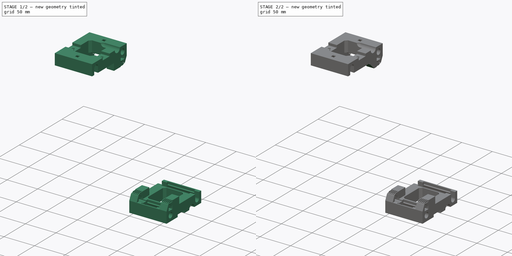
[diagram: build sequence overview — one tinted view per stage of 2, left to right]
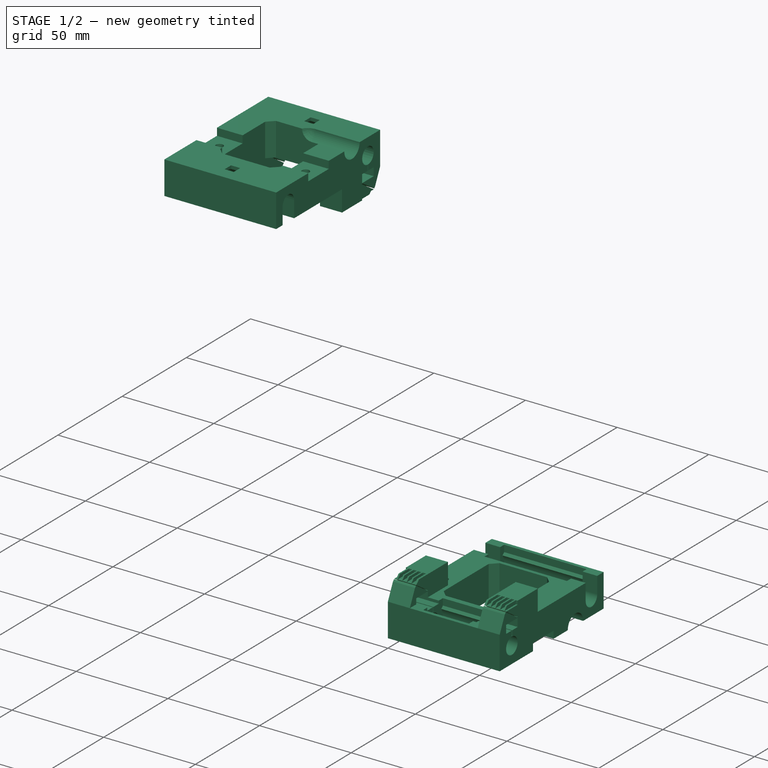
[diagram: stage 1 of 2 — iso view after this stage's code; geometry added in this stage tinted green]
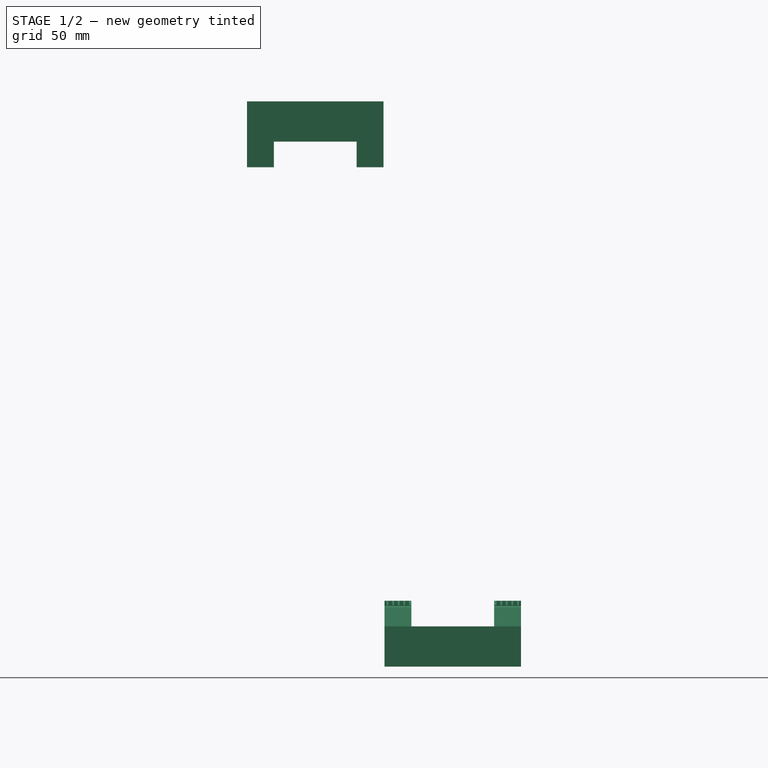
[diagram: stage 1 of 2 — front view after this stage's code; geometry added in this stage tinted green]
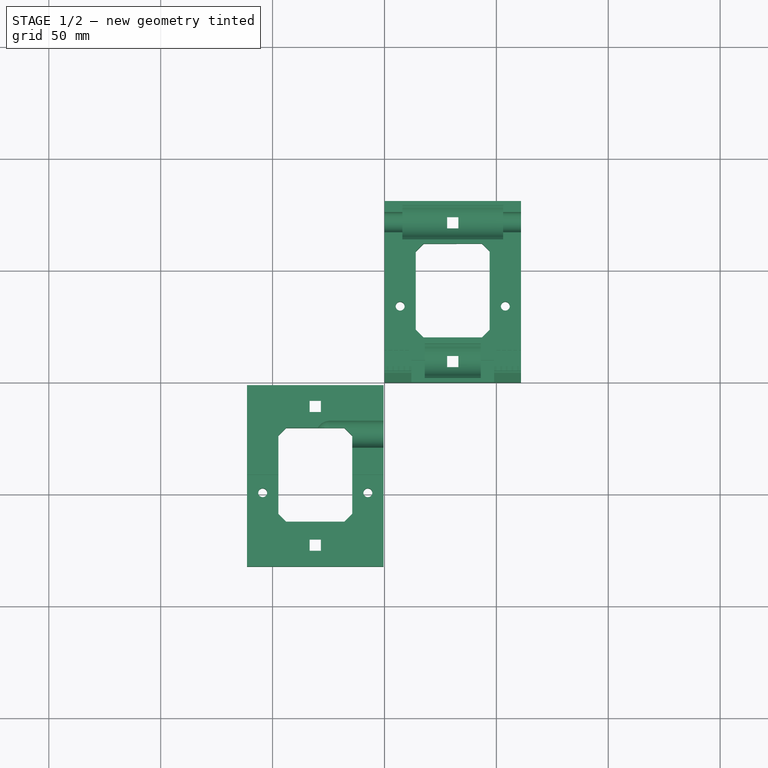
[diagram: stage 1 of 2 — top view after this stage's code; geometry added in this stage tinted green]
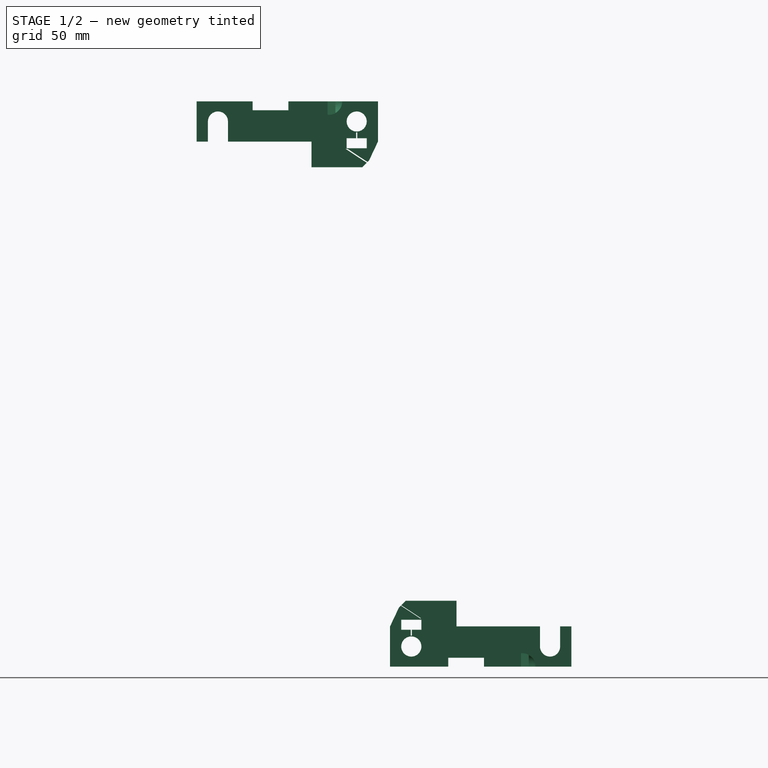
[diagram: stage 1 of 2 — right view after this stage's code; geometry added in this stage tinted green]
FCSTD DOCUMENT  (FreeCAD 0.16R6045 (Git))
Label: carros_pletina_larga
License: All rights reserved
LicenseURL: http://en.wikipedia.org/wiki/All_rights_reserved
objects: Part::Feature×4, Sketcher::SketchObject×2, PartDesign::Pad×2, PartDesign::Chamfer×1
note: 11 computed .brp shape members not serialized (recipe doc carries the construction recipe); baked Part::Feature solids carry a one-line shape summary decoded from their .brp

FEATURE [Part::Feature] Part__Feature  label="carro"
  shape: bbox 61 x 81 x 29.46 mm, 490 faces (baked)
FEATURE [Part::Feature] Part__Feature001  label="carros SIRIUS"
  shape: bbox 61 x 81 x 29.46 mm, 188 faces (baked)
FEATURE [Part::Feature] Part__Feature002  label="carros SIRIUS001"
  shape: bbox 61 x 81 x 29.46 mm, 148 faces (baked)
FEATURE [Sketcher::SketchObject] Sketch
  ExternalGeometry = -> [Part__Feature]
  Placement = pos=(0,0,234.615) rot=(1,0,0;3.14159rad)
  Support = -> Part__Feature [Face27]
  sketch-geometry (9):
    g0: LineSegment StartX=-61.4234 StartY=25.0968 StartZ=0 EndX=-49.4234 EndY=25.0968 EndZ=0
    g1: LineSegment StartX=-49.4234 StartY=25.0968 StartZ=0 EndX=-49.4234 EndY=35.0968 EndZ=0
    g2: LineSegment StartX=-49.4234 StartY=35.0968 StartZ=0 EndX=-61.4234 EndY=35.0968 EndZ=0
    g3: LineSegment StartX=-61.4234 StartY=35.0968 StartZ=0 EndX=-61.4234 EndY=25.0968 EndZ=0
    g4: LineSegment StartX=-0.42276 StartY=25.0968 StartZ=0 EndX=-12.4228 EndY=25.0968 EndZ=0
    g5: LineSegment StartX=-12.4228 StartY=25.0968 StartZ=0 EndX=-12.4228 EndY=35.0968 EndZ=0
    g6: LineSegment StartX=-12.4228 StartY=35.0968 StartZ=0 EndX=-0.42276 EndY=35.0968 EndZ=0
    g7: LineSegment StartX=-0.42276 StartY=35.0968 StartZ=0 EndX=-0.42276 EndY=25.0968 EndZ=0
    g8: LineSegment [constr] StartX=-49.4234 StartY=35.0968 StartZ=0 EndX=-12.4228 EndY=35.0968 EndZ=0
  constraints (24):
    c: Coincident(g0,g1)
    c: Coincident(g1,g2)
    c: Coincident(g2,g3)
    c: Coincident(g3,g0)
    c: Horizontal(g0)
    c: Horizontal(g2)
    c: Vertical(g1)
    c: Vertical(g3)
    c: Coincident(g0,g-3)
    c: Coincident(g4,g5)
    c: Coincident(g5,g6)
    c: Coincident(g6,g7)
    c: Coincident(g7,g4)
    c: Horizontal(g4)
    c: Horizontal(g6)
    c: Vertical(g5)
    c: Vertical(g7)
    c: Coincident(g4,g-4)
    c: Coincident(g4,g-4)
    c: Coincident(g0,g-3)
    c: Coincident(g8,g1)
    c: Coincident(g8,g5)
    c: Horizontal(g8)
    c: Distance(g5) = 10
FEATURE [PartDesign::Pad] Pad
  Length = 12
  Length2 = 100
  Sketch = -> Sketch
  Type = 3
  UpToFace = -> Part__Feature [Face161]
FEATURE [Part::Feature] Chamfer001
  shape: bbox 61 x 81 x 29.46 mm, 490 faces (baked)
FEATURE [Sketcher::SketchObject] Sketch001
  ExternalGeometry = -> [Part__Feature002]
  Placement = pos=(0,0,18) rot=(0,0,1;0rad)
  Support = -> Part__Feature002 [Face11]
  sketch-geometry (9):
    g0: LineSegment StartX=61.0003 StartY=19.6899 StartZ=0 EndX=49.0003 EndY=19.6899 EndZ=0
    g1: LineSegment StartX=49.0003 StartY=19.6899 StartZ=0 EndX=49.0003 EndY=29.6899 EndZ=0
    g2: LineSegment StartX=49.0003 StartY=29.6899 StartZ=0 EndX=61.0003 EndY=29.6899 EndZ=0
    g3: LineSegment StartX=61.0003 StartY=29.6899 StartZ=0 EndX=61.0003 EndY=19.6899 EndZ=0
    g4: LineSegment StartX=-0.000321625 StartY=19.6899 StartZ=0 EndX=11.9997 EndY=19.6899 EndZ=0
    g5: LineSegment StartX=11.9997 StartY=19.6899 StartZ=0 EndX=11.9997 EndY=29.6899 EndZ=0
    g6: LineSegment StartX=11.9997 StartY=29.6899 StartZ=0 EndX=-0.000321625 EndY=29.6899 EndZ=0
    g7: LineSegment StartX=-0.000321625 StartY=29.6899 StartZ=0 EndX=-0.000321625 EndY=19.6899 EndZ=0
    g8: LineSegment [constr] StartX=49.0003 StartY=29.6899 StartZ=0 EndX=11.9997 EndY=29.6899 EndZ=0
  constraints (24):
    c: Coincident(g0,g1)
    c: Coincident(g1,g2)
    c: Coincident(g2,g3)
    c: Coincident(g3,g0)
    c: Horizontal(g0)
    c: Horizontal(g2)
    c: Vertical(g1)
    c: Vertical(g3)
    c: Coincident(g0,g-4)
    c: Coincident(g4,g5)
    c: Coincident(g5,g6)
    c: Coincident(g6,g7)
    c: Coincident(g7,g4)
    c: Horizontal(g4)
    c: Horizontal(g6)
    c: Vertical(g5)
    c: Vertical(g7)
    c: Coincident(g4,g-3)
    c: Coincident(g4,g-3)
    c: Coincident(g0,g-4)
    c: Coincident(g8,g1)
    c: Horizontal(g8)
    c: Coincident(g5,g8)
    c: Distance(g3) = 10
FEATURE [PartDesign::Pad] Pad001
  Length = 10
  Length2 = 100
  Sketch = -> Sketch001
  Type = 3
  UpToFace = -> Part__Feature002 [Face64]
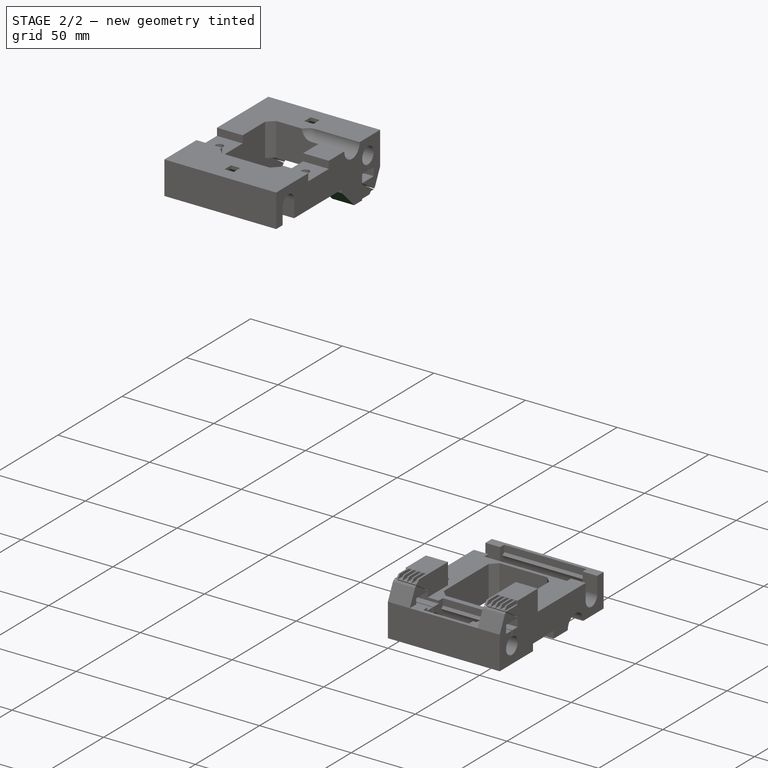
[diagram: stage 2 of 2 — iso view after this stage's code; geometry added in this stage tinted green]
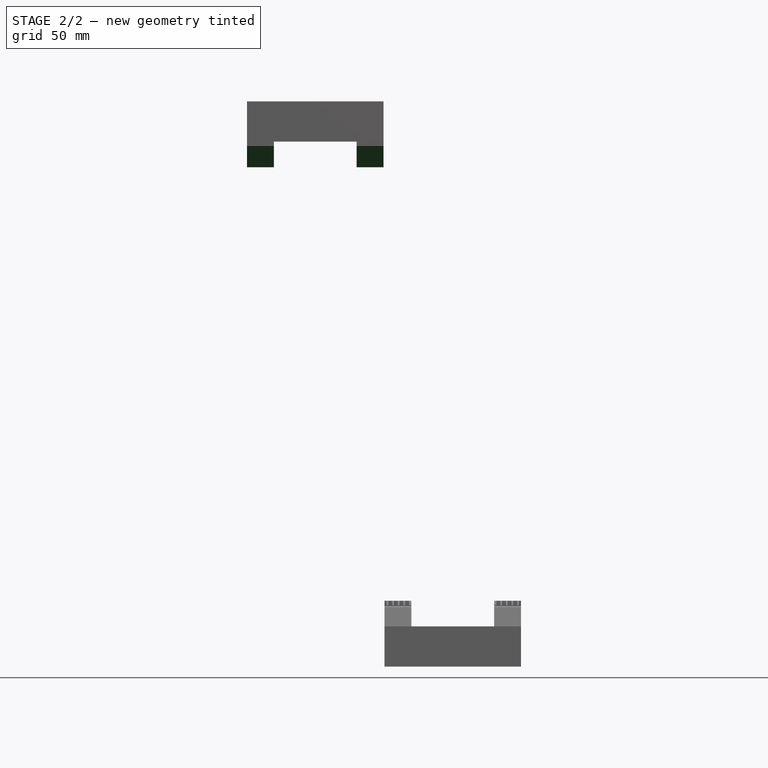
[diagram: stage 2 of 2 — front view after this stage's code; geometry added in this stage tinted green]
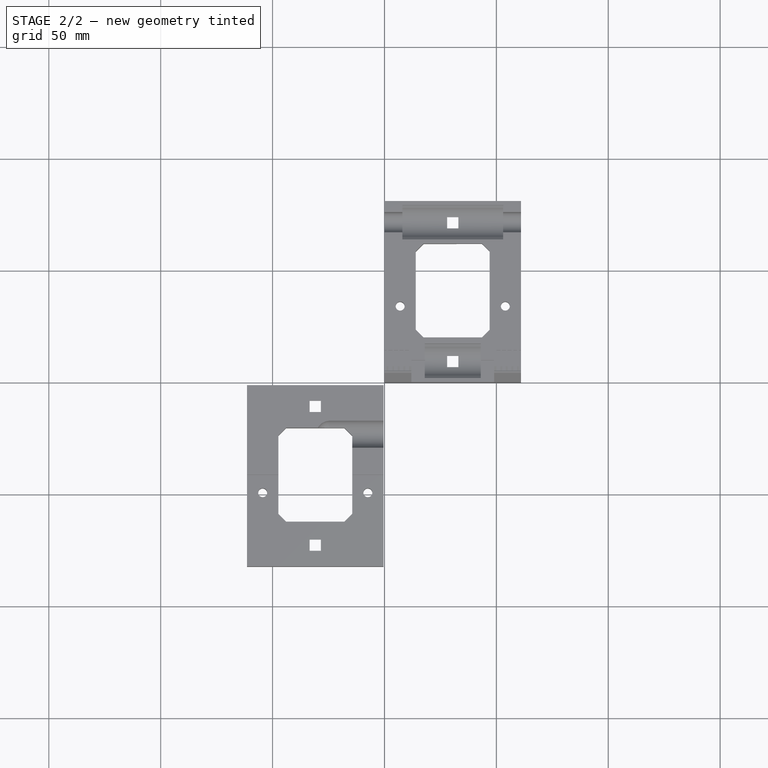
[diagram: stage 2 of 2 — top view after this stage's code; geometry added in this stage tinted green]
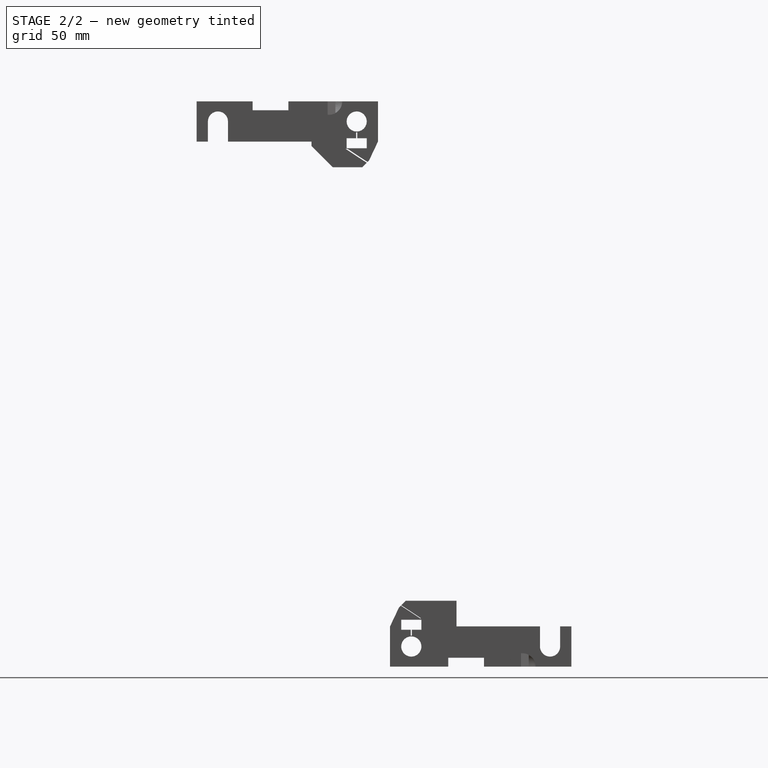
[diagram: stage 2 of 2 — right view after this stage's code; geometry added in this stage tinted green]
FEATURE [PartDesign::Chamfer] Chamfer
  Base = -> Pad [Edge146,Edge315]
  Size = 9.5
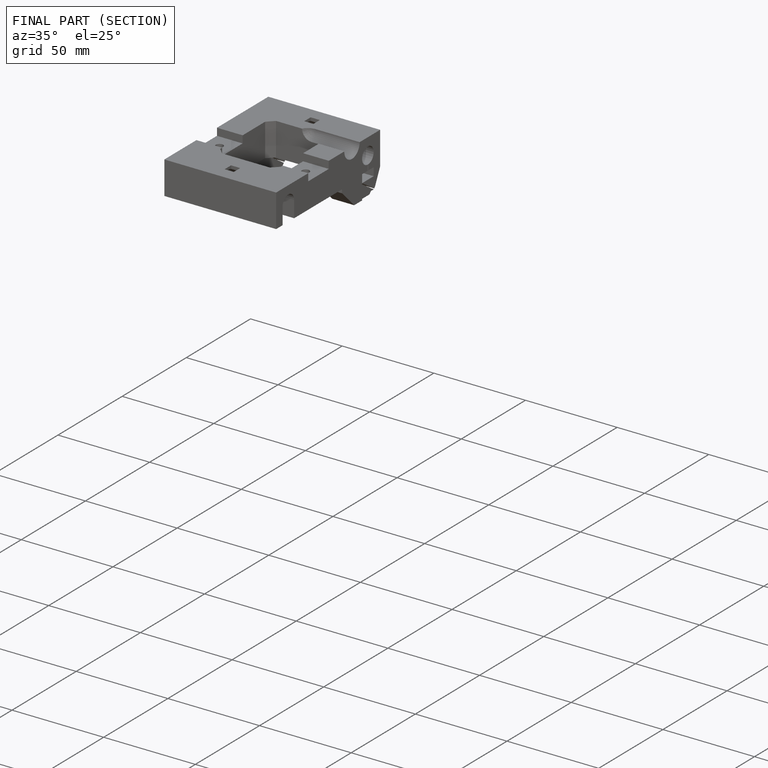
[diagram: finished part — half-section view (interior)]
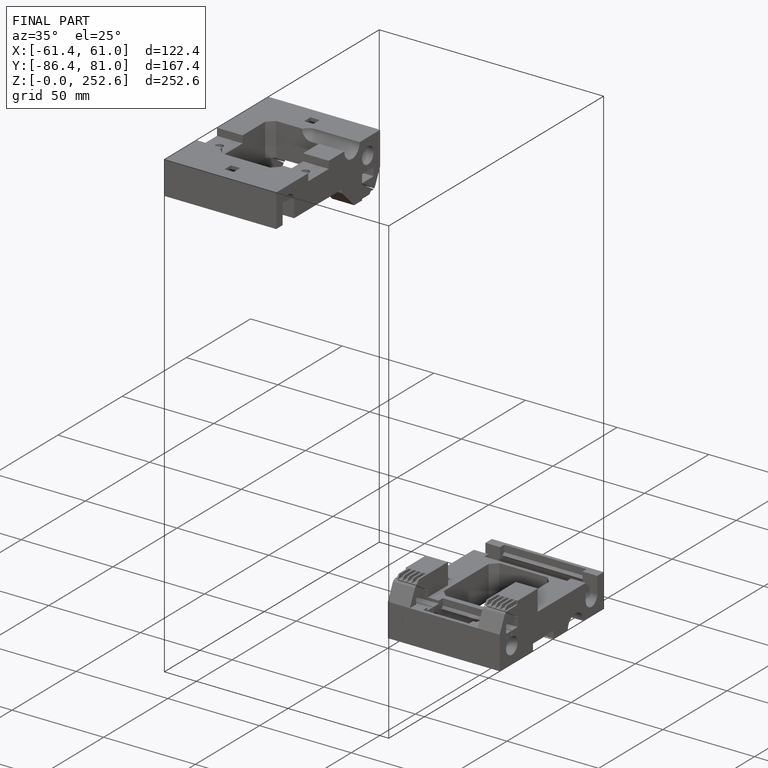
[diagram: finished part — iso view with bounding-box wireframe]
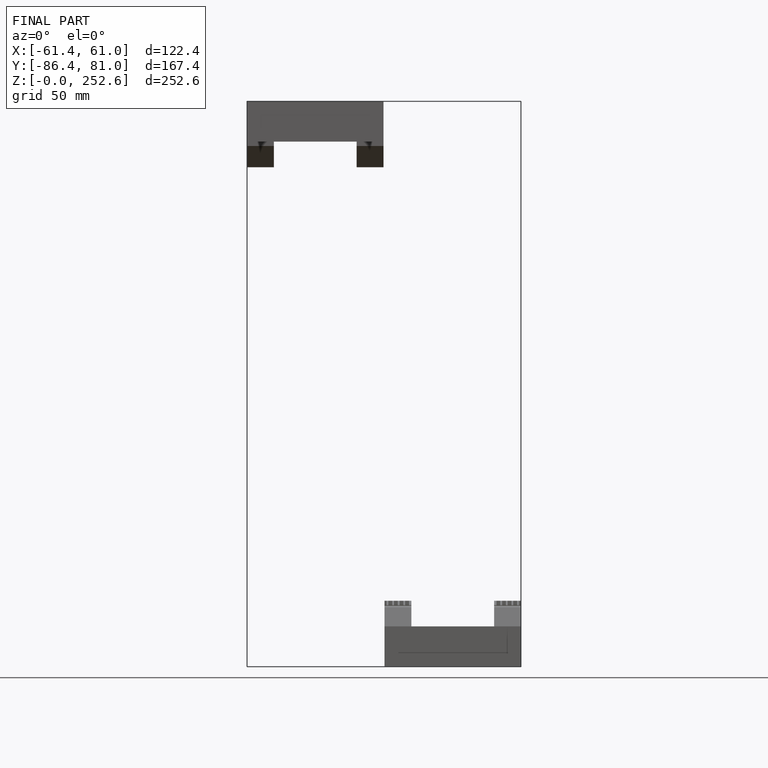
[diagram: finished part — front view with bounding-box wireframe]
